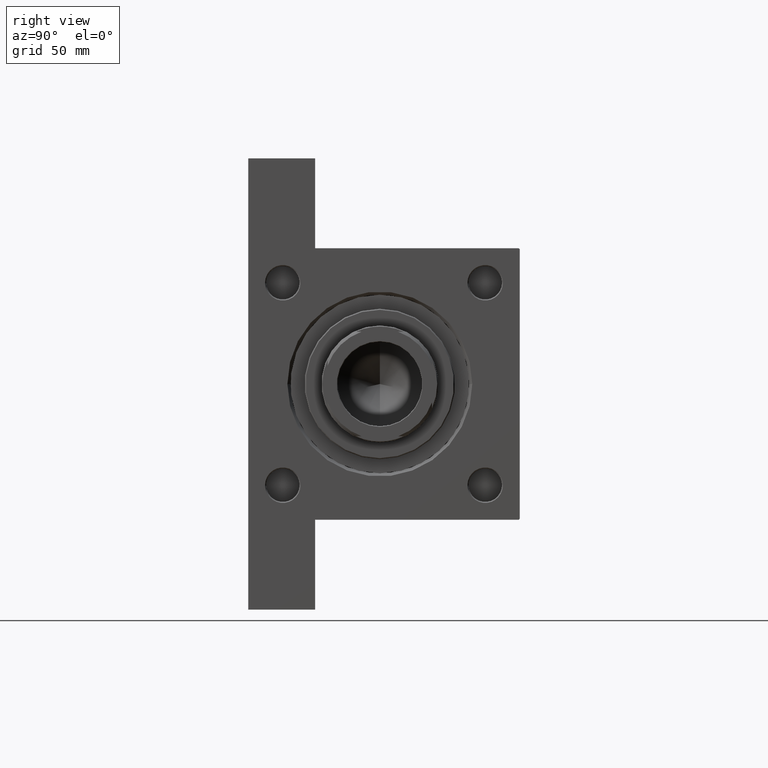
[diagram: clean part render]
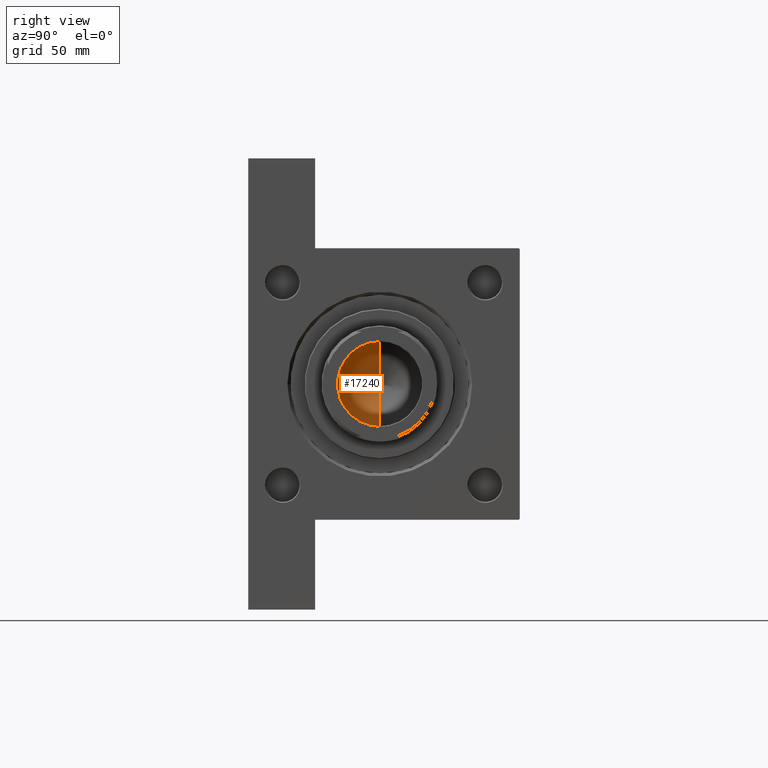
[diagram: same view with one face highlighted and labeled with its STEP entity id]
A machine part, right view. The second image highlights one B-rep face of the part: STEP entity #17240.
In plain terms, the highlighted conical surface has half-angle 59 deg.
Its self-contained STEP definition (entity closure, byte-faithful):
#255 = ORIENTED_EDGE ( 'NONE', *, *, #10923, .F. ) ;
#2152 = AXIS2_PLACEMENT_3D ( 'NONE', #24064, #35295, #20880 ) ;
#2865 = EDGE_CURVE ( 'NONE', #47694, #29930, #33896, .T. ) ;
#3215 = CARTESIAN_POINT ( 'NONE',  ( 0.000000000000000000, 0.000000000000000000, 117.0000000000000142 ) ) ;
#6219 = ORIENTED_EDGE ( 'NONE', *, *, #2865, .T. ) ;
#10057 = DIRECTION ( 'NONE',  ( -0.000000000000000000, -0.000000000000000000, 1.000000000000000000 ) ) ;
#10923 = EDGE_CURVE ( 'NONE', #47694, #17185, #41570, .T. ) ;
#11495 = CIRCLE ( 'NONE', #2152, 20.24999999999998934 ) ;
#15095 = VECTOR ( 'NONE', #38156, 1000.000000000000000 ) ;
#17185 = VERTEX_POINT ( 'NONE', #34966 ) ;
#17240 = ADVANCED_FACE ( 'NONE', ( #40555 ), #18383, .F. ) ;
#18383 = CONICAL_SURFACE ( 'NONE', #27785, 20.24999999999998934, 1.029744258676652979 ) ;
#20760 = CARTESIAN_POINT ( 'NONE',  ( 20.24999999999998934, 0.000000000000000000, 117.0000000000000142 ) ) ;
#20880 = DIRECTION ( 'NONE',  ( 1.000000000000000000, 0.000000000000000000, 0.000000000000000000 ) ) ;
#24064 = CARTESIAN_POINT ( 'NONE',  ( 0.000000000000000000, 0.000000000000000000, 117.0000000000000142 ) ) ;
#27785 = AXIS2_PLACEMENT_3D ( 'NONE', #3215, #10057, #28376 ) ;
#28376 = DIRECTION ( 'NONE',  ( 1.000000000000000000, 0.000000000000000000, 0.000000000000000000 ) ) ;
#29930 = VERTEX_POINT ( 'NONE', #20760 ) ;
#30229 = CARTESIAN_POINT ( 'NONE',  ( 20.24999999999998934, 0.000000000000000000, 117.0000000000000142 ) ) ;
#33359 = EDGE_CURVE ( 'NONE', #29930, #17185, #11495, .T. ) ;
#33896 = LINE ( 'NONE', #30229, #39758 ) ;
#34239 = CARTESIAN_POINT ( 'NONE',  ( -20.24999999999998934, 2.479909768273389117E-15, 117.0000000000000142 ) ) ;
#34966 = CARTESIAN_POINT ( 'NONE',  ( -20.24999999999998934, 2.479909768273389117E-15, 117.0000000000000142 ) ) ;
#35295 = DIRECTION ( 'NONE',  ( -0.000000000000000000, -0.000000000000000000, 1.000000000000000000 ) ) ;
#38156 = DIRECTION ( 'NONE',  ( -0.8571673007021115565, 1.049727191138617710E-16, 0.5150380749100554878 ) ) ;
#39474 = CARTESIAN_POINT ( 'NONE',  ( -1.584115414415908206E-14, 0.000000000000000000, 104.8325724646918928 ) ) ;
#39758 = VECTOR ( 'NONE', #45120, 1000.000000000000000 ) ;
#40555 = FACE_OUTER_BOUND ( 'NONE', #42850, .T. ) ;
#40604 = ORIENTED_EDGE ( 'NONE', *, *, #33359, .T. ) ;
#41570 = LINE ( 'NONE', #34239, #15095 ) ;
#42850 = EDGE_LOOP ( 'NONE', ( #255, #6219, #40604 ) ) ;
#45120 = DIRECTION ( 'NONE',  ( 0.8571673007021115565, 0.000000000000000000, 0.5150380749100554878 ) ) ;
#47694 = VERTEX_POINT ( 'NONE', #39474 ) ;